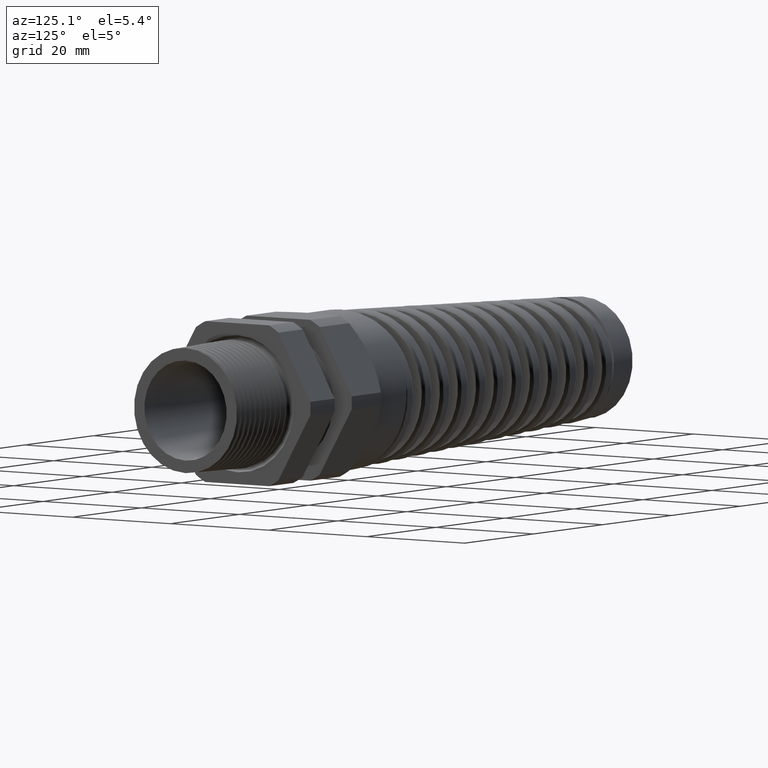
[diagram: clean part render]
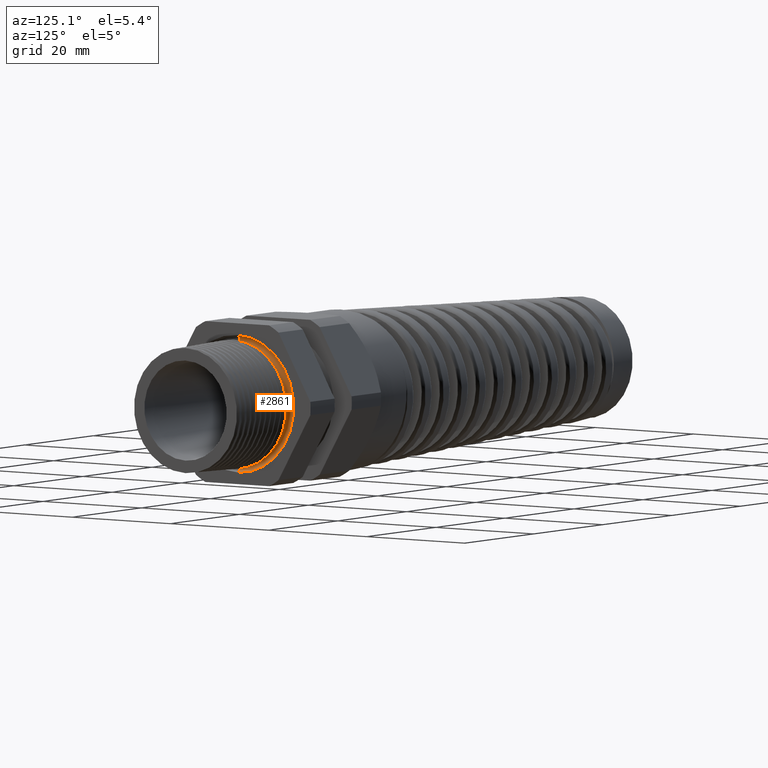
[diagram: same view with one face highlighted and labeled with its STEP entity id]
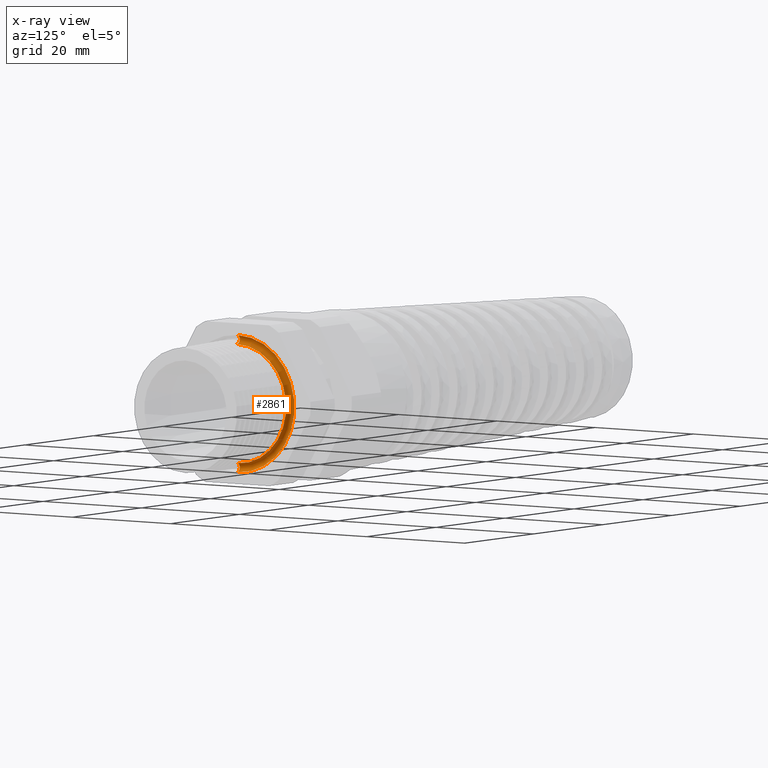
[diagram: x-ray of the same camera — body ghosted, the highlighted face saturated]
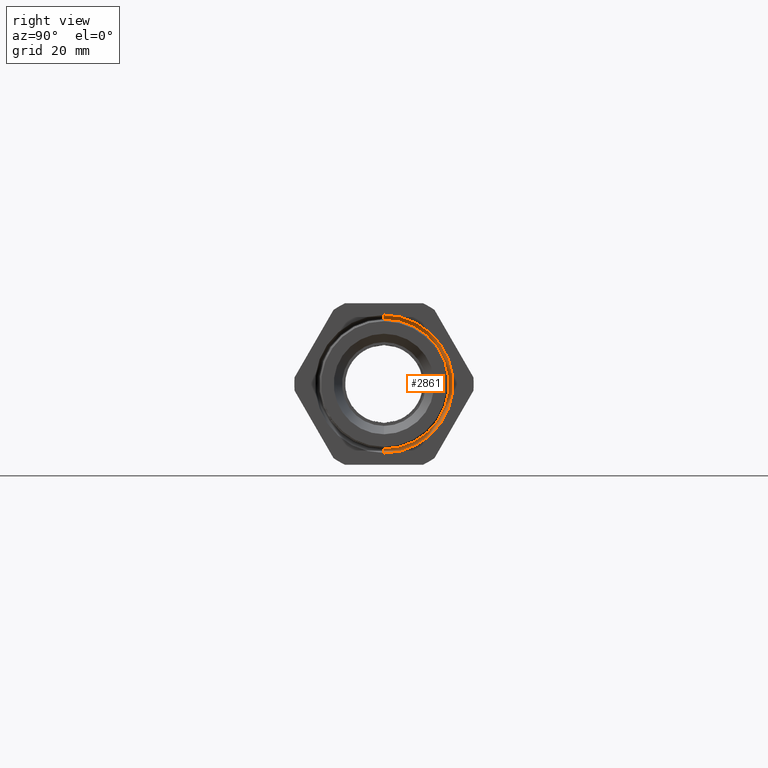
[diagram: same view with one face highlighted and labeled with its STEP entity id]
A machine part, auxiliary view. The second image highlights one B-rep face of the part: STEP entity #2861.
The next image is the same camera in x-ray: the body ghosted, the highlighted face saturated — about 0% of this face is hidden behind the body in this view.
A second angle (right view) of the same face is appended — the face is thin or edge-on in the first view.
In plain terms, the highlighted toroidal blend (fillet) surface has major radius 10.7363 mm and minor (blend) radius 0.762 mm.
Its self-contained STEP definition (entity closure, byte-faithful):
#1664 = CARTESIAN_POINT ( 'NONE',  ( -0.3089999999999999400, 4.809072312103044100E-017, 0.3926905549788973800 ) ) ;
#1665 = DIRECTION ( 'NONE',  ( 0.0000000000000000000, 0.0000000000000000000, -1.000000000000000000 ) ) ;
#1666 = DIRECTION ( 'NONE',  ( 1.000000000000000000, 0.0000000000000000000, 0.0000000000000000000 ) ) ;
#1667 = CARTESIAN_POINT ( 'NONE',  ( -0.3089999999999999400, 0.0000000000000000000, 0.0000000000000000000 ) ) ;
#1668 = AXIS2_PLACEMENT_3D ( 'NONE', #1667, #1666, #1665 ) ;
#1669 = CIRCLE ( 'NONE', #1668, 0.3926905549788973800 ) ;
#1670 = CARTESIAN_POINT ( 'NONE',  ( -0.3089999999999999400, 0.0000000000000000000, -0.3926905549788973800 ) ) ;
#2274 = CIRCLE ( 'NONE', #2410, 0.02999999999999995400 ) ;
#2275 = CARTESIAN_POINT ( 'NONE',  ( -0.3100000000000000000, 0.0000000000000000000, -0.4526738836800271400 ) ) ;
#2407 = DIRECTION ( 'NONE',  ( 0.0000000000000000000, 0.0000000000000000000, -1.000000000000000000 ) ) ;
#2408 = DIRECTION ( 'NONE',  ( 0.0000000000000000000, -1.000000000000000000, 0.0000000000000000000 ) ) ;
#2409 = CARTESIAN_POINT ( 'NONE',  ( -0.3089999999999999400, 0.0000000000000000000, -0.4226905549788973500 ) ) ;
#2410 = AXIS2_PLACEMENT_3D ( 'NONE', #2409, #2408, #2407 ) ;
#2514 = CARTESIAN_POINT ( 'NONE',  ( -0.3100000000000000000, 5.543656227063465800E-017, 0.4526738836800271400 ) ) ;
#2519 = DIRECTION ( 'NONE',  ( 0.0000000000000000000, 1.224646799147354900E-016, 1.000000000000000000 ) ) ;
#2520 = DIRECTION ( 'NONE',  ( 0.0000000000000000000, 1.000000000000000000, -1.224646799147353200E-016 ) ) ;
#2521 = AXIS2_PLACEMENT_3D ( 'NONE', #2523, #2520, #2519 ) ;
#2522 = CIRCLE ( 'NONE', #2521, 0.02999999999999995400 ) ;
#2523 = CARTESIAN_POINT ( 'NONE',  ( -0.3089999999999999400, 5.176466351847249300E-017, 0.4226905549788973500 ) ) ;
#2861 = ADVANCED_FACE ( 'NONE', ( #11951 ), #11949, .F. ) ;
#2862 = ORIENTED_EDGE ( 'NONE', *, *, #4492, .F. ) ;
#2864 = ORIENTED_EDGE ( 'NONE', *, *, #3116, .F. ) ;
#2865 = ORIENTED_EDGE ( 'NONE', *, *, #3222, .F. ) ;
#3027 = EDGE_LOOP ( 'NONE', ( #2865, #3028, #2862, #2864 ) ) ;
#3028 = ORIENTED_EDGE ( 'NONE', *, *, #3311, .T. ) ;
#3116 = EDGE_CURVE ( 'NONE', #3223, #3117, #2522, .T. ) ;
#3117 = VERTEX_POINT ( 'NONE', #2514 ) ;
#3220 = VERTEX_POINT ( 'NONE', #1670 ) ;
#3222 = EDGE_CURVE ( 'NONE', #3220, #3223, #1669, .T. ) ;
#3223 = VERTEX_POINT ( 'NONE', #1664 ) ;
#3309 = VERTEX_POINT ( 'NONE', #2275 ) ;
#3311 = EDGE_CURVE ( 'NONE', #3220, #3309, #2274, .T. ) ;
#4492 = EDGE_CURVE ( 'NONE', #3117, #3309, #18724, .T. ) ;
#11946 = DIRECTION ( 'NONE',  ( 0.0000000000000000000, 0.0000000000000000000, -1.000000000000000000 ) ) ;
#11947 = DIRECTION ( 'NONE',  ( 1.000000000000000000, 0.0000000000000000000, 0.0000000000000000000 ) ) ;
#11948 = AXIS2_PLACEMENT_3D ( 'NONE', #11950, #11947, #11946 ) ;
#11949 = TOROIDAL_SURFACE ( 'NONE', #11948, 0.4226905549788973500, 0.02999999999999997500 ) ;
#11950 = CARTESIAN_POINT ( 'NONE',  ( -0.3089999999999999400, 0.0000000000000000000, 0.0000000000000000000 ) ) ;
#11951 = FACE_OUTER_BOUND ( 'NONE', #3027, .T. ) ;
#18720 = DIRECTION ( 'NONE',  ( 0.0000000000000000000, 0.0000000000000000000, -1.000000000000000000 ) ) ;
#18721 = DIRECTION ( 'NONE',  ( -1.000000000000000000, 0.0000000000000000000, 0.0000000000000000000 ) ) ;
#18722 = CARTESIAN_POINT ( 'NONE',  ( -0.3100000000000000000, 0.0000000000000000000, 0.0000000000000000000 ) ) ;
#18723 = AXIS2_PLACEMENT_3D ( 'NONE', #18722, #18721, #18720 ) ;
#18724 = CIRCLE ( 'NONE', #18723, 0.4526738836800272600 ) ;